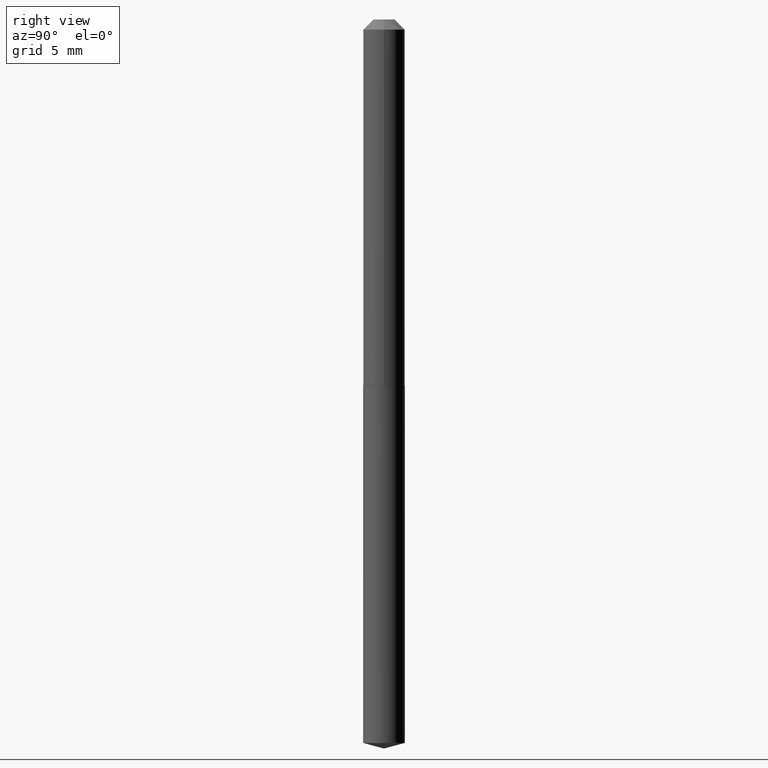
[diagram: clean part render]
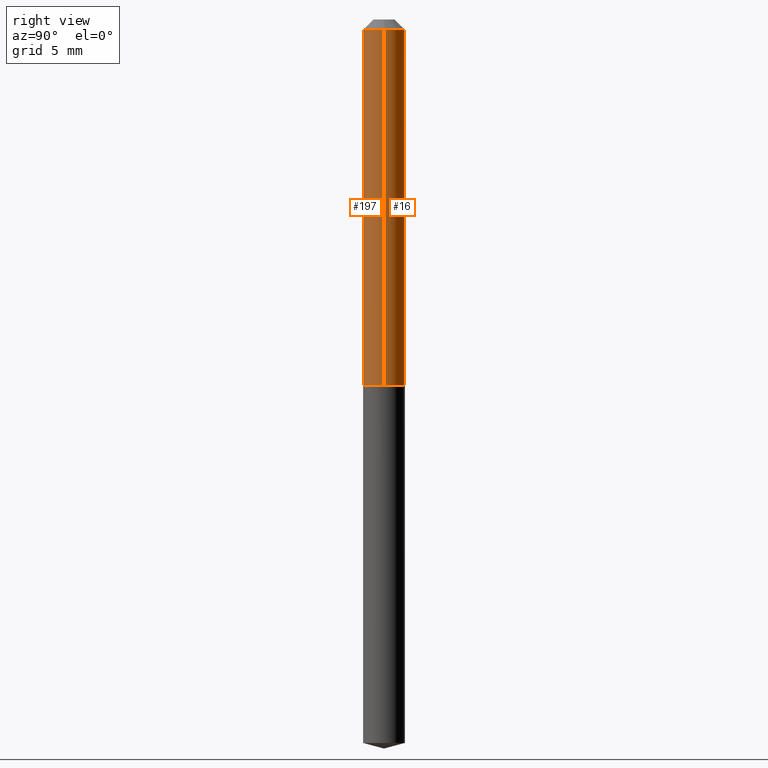
[diagram: same view with one multi-face feature highlighted, each face labeled with its STEP entity id]
A machine part, right view. The highlighted faces form ONE feature: a constant-radius fillet chain: 2 tangent blend faces with common blend radius 1.632 mm. The faces share edges in the B-rep.
Their STEP definitions:
[1] entity #197 (Cylinder):
#3 = VECTOR ( 'NONE', #317, 39.37007874015748143 ) ;
#27 = VERTEX_POINT ( 'NONE', #311 ) ;
#28 = DIRECTION ( 'NONE',  ( 1.000000000000000000, -6.982962677686269077E-15, 0.000000000000000000 ) ) ;
#31 = ORIENTED_EDGE ( 'NONE', *, *, #258, .F. ) ;
#40 = CARTESIAN_POINT ( 'NONE',  ( 0.000000000000000000, 0.000000000000000000, 0.000000000000000000 ) ) ;
#53 = CARTESIAN_POINT ( 'NONE',  ( 7.642090019328601786E-31, -1.091087918388490144E-16, -0.03125000000000020123 ) ) ;
#56 = DIRECTION ( 'NONE',  ( 1.000000000000000000, -6.982962677686265922E-15, 0.000000000000000000 ) ) ;
#61 = CIRCLE ( 'NONE', #330, 0.06425000000000014033 ) ;
#68 = CYLINDRICAL_SURFACE ( 'NONE', #195, 0.06425000000000007094 ) ;
#85 = EDGE_LOOP ( 'NONE', ( #31, #387, #105, #260 ) ) ;
#87 = DIRECTION ( 'NONE',  ( -2.445468806185136597E-29, 3.491481338843145583E-15, 1.000000000000000000 ) ) ;
#90 = VERTEX_POINT ( 'NONE', #353 ) ;
#102 = EDGE_CURVE ( 'NONE', #257, #90, #61, .T. ) ;
#105 = ORIENTED_EDGE ( 'NONE', *, *, #249, .T. ) ;
#114 = EDGE_CURVE ( 'NONE', #27, #291, #301, .T. ) ;
#117 = DIRECTION ( 'NONE',  ( 1.000000000000000000, -6.982962677686265922E-15, 4.876176775795935793E-29 ) ) ;
#147 = AXIS2_PLACEMENT_3D ( 'NONE', #53, #331, #56 ) ;
#187 = FACE_OUTER_BOUND ( 'NONE', #85, .T. ) ;
#195 = AXIS2_PLACEMENT_3D ( 'NONE', #40, #273, #117 ) ;
#197 = ADVANCED_FACE ( 'NONE', ( #187 ), #68, .T. ) ;
#224 = LINE ( 'NONE', #343, #3 ) ;
#227 = CARTESIAN_POINT ( 'NONE',  ( -0.06425000000000014033, -3.481867242489202879E-15, -1.128000000000000114 ) ) ;
#249 = EDGE_CURVE ( 'NONE', #90, #291, #224, .T. ) ;
#250 = DIRECTION ( 'NONE',  ( -2.445468806185136877E-29, 3.491481338843145188E-15, 1.000000000000000000 ) ) ;
#256 = CARTESIAN_POINT ( 'NONE',  ( -0.06425000000000007094, 4.565237077258648735E-16, -3.160415795488780682E-30 ) ) ;
#257 = VERTEX_POINT ( 'NONE', #227 ) ;
#258 = EDGE_CURVE ( 'NONE', #257, #27, #293, .T. ) ;
#260 = ORIENTED_EDGE ( 'NONE', *, *, #114, .F. ) ;
#273 = DIRECTION ( 'NONE',  ( -2.445468806185136597E-29, 3.491481338843145583E-15, 1.000000000000000000 ) ) ;
#291 = VERTEX_POINT ( 'NONE', #371 ) ;
#293 = LINE ( 'NONE', #256, #302 ) ;
#301 = CIRCLE ( 'NONE', #147, 0.06425000000000000155 ) ;
#302 = VECTOR ( 'NONE', #250, 39.37007874015748143 ) ;
#311 = CARTESIAN_POINT ( 'NONE',  ( -0.06425000000000000155, -1.567226163301092912E-15, -0.03125000000000020123 ) ) ;
#317 = DIRECTION ( 'NONE',  ( -2.445468806185136877E-29, 3.491481338843145188E-15, 1.000000000000000000 ) ) ;
#330 = AXIS2_PLACEMENT_3D ( 'NONE', #381, #87, #28 ) ;
#331 = DIRECTION ( 'NONE',  ( -2.445468806185136597E-29, 3.491481338843145583E-15, 1.000000000000000000 ) ) ;
#343 = CARTESIAN_POINT ( 'NONE',  ( 0.06425000000000007094, -4.486553520413430819E-16, 3.132943578448892334E-30 ) ) ;
#353 = CARTESIAN_POINT ( 'NONE',  ( 0.06425000000000014033, -4.387046302256412018E-15, -1.128000000000000114 ) ) ;
#371 = CARTESIAN_POINT ( 'NONE',  ( 0.06425000000000000155, -5.577641438801915909E-16, -0.03125000000000020123 ) ) ;
#381 = CARTESIAN_POINT ( 'NONE',  ( 2.758488813376834359E-29, -3.938390950215068246E-15, -1.128000000000000114 ) ) ;
#387 = ORIENTED_EDGE ( 'NONE', *, *, #102, .T. ) ;
[2] entity #16 (Cylinder):
#3 = VECTOR ( 'NONE', #317, 39.37007874015748143 ) ;
#16 = ADVANCED_FACE ( 'NONE', ( #218 ), #244, .T. ) ;
#20 = ORIENTED_EDGE ( 'NONE', *, *, #161, .F. ) ;
#27 = VERTEX_POINT ( 'NONE', #311 ) ;
#33 = CIRCLE ( 'NONE', #362, 0.06425000000000000155 ) ;
#66 = AXIS2_PLACEMENT_3D ( 'NONE', #338, #75, #157 ) ;
#75 = DIRECTION ( 'NONE',  ( -2.445468806185136597E-29, 3.491481338843145583E-15, 1.000000000000000000 ) ) ;
#83 = ORIENTED_EDGE ( 'NONE', *, *, #258, .T. ) ;
#84 = EDGE_CURVE ( 'NONE', #90, #257, #349, .T. ) ;
#90 = VERTEX_POINT ( 'NONE', #353 ) ;
#108 = DIRECTION ( 'NONE',  ( -2.445468806185136597E-29, 3.491481338843145583E-15, 1.000000000000000000 ) ) ;
#123 = DIRECTION ( 'NONE',  ( -2.445468806185136597E-29, 3.491481338843145583E-15, 1.000000000000000000 ) ) ;
#148 = CARTESIAN_POINT ( 'NONE',  ( 7.642090019328601786E-31, -1.091087918388490144E-16, -0.03125000000000020123 ) ) ;
#154 = CARTESIAN_POINT ( 'NONE',  ( 2.758488813376834359E-29, -3.938390950215068246E-15, -1.128000000000000114 ) ) ;
#157 = DIRECTION ( 'NONE',  ( 1.000000000000000000, -6.982962677686265922E-15, 4.876176775795935793E-29 ) ) ;
#158 = AXIS2_PLACEMENT_3D ( 'NONE', #154, #123, #169 ) ;
#161 = EDGE_CURVE ( 'NONE', #291, #27, #33, .T. ) ;
#169 = DIRECTION ( 'NONE',  ( 1.000000000000000000, -6.982962677686269077E-15, 0.000000000000000000 ) ) ;
#218 = FACE_OUTER_BOUND ( 'NONE', #359, .T. ) ;
#224 = LINE ( 'NONE', #343, #3 ) ;
#227 = CARTESIAN_POINT ( 'NONE',  ( -0.06425000000000014033, -3.481867242489202879E-15, -1.128000000000000114 ) ) ;
#238 = ORIENTED_EDGE ( 'NONE', *, *, #84, .T. ) ;
#244 = CYLINDRICAL_SURFACE ( 'NONE', #66, 0.06425000000000007094 ) ;
#249 = EDGE_CURVE ( 'NONE', #90, #291, #224, .T. ) ;
#250 = DIRECTION ( 'NONE',  ( -2.445468806185136877E-29, 3.491481338843145188E-15, 1.000000000000000000 ) ) ;
#256 = CARTESIAN_POINT ( 'NONE',  ( -0.06425000000000007094, 4.565237077258648735E-16, -3.160415795488780682E-30 ) ) ;
#257 = VERTEX_POINT ( 'NONE', #227 ) ;
#258 = EDGE_CURVE ( 'NONE', #257, #27, #293, .T. ) ;
#263 = ORIENTED_EDGE ( 'NONE', *, *, #249, .F. ) ;
#265 = DIRECTION ( 'NONE',  ( 1.000000000000000000, -6.982962677686265922E-15, 0.000000000000000000 ) ) ;
#291 = VERTEX_POINT ( 'NONE', #371 ) ;
#293 = LINE ( 'NONE', #256, #302 ) ;
#302 = VECTOR ( 'NONE', #250, 39.37007874015748143 ) ;
#311 = CARTESIAN_POINT ( 'NONE',  ( -0.06425000000000000155, -1.567226163301092912E-15, -0.03125000000000020123 ) ) ;
#317 = DIRECTION ( 'NONE',  ( -2.445468806185136877E-29, 3.491481338843145188E-15, 1.000000000000000000 ) ) ;
#338 = CARTESIAN_POINT ( 'NONE',  ( 0.000000000000000000, 0.000000000000000000, 0.000000000000000000 ) ) ;
#343 = CARTESIAN_POINT ( 'NONE',  ( 0.06425000000000007094, -4.486553520413430819E-16, 3.132943578448892334E-30 ) ) ;
#349 = CIRCLE ( 'NONE', #158, 0.06425000000000014033 ) ;
#353 = CARTESIAN_POINT ( 'NONE',  ( 0.06425000000000014033, -4.387046302256412018E-15, -1.128000000000000114 ) ) ;
#359 = EDGE_LOOP ( 'NONE', ( #238, #83, #20, #263 ) ) ;
#362 = AXIS2_PLACEMENT_3D ( 'NONE', #148, #108, #265 ) ;
#371 = CARTESIAN_POINT ( 'NONE',  ( 0.06425000000000000155, -5.577641438801915909E-16, -0.03125000000000020123 ) ) ;